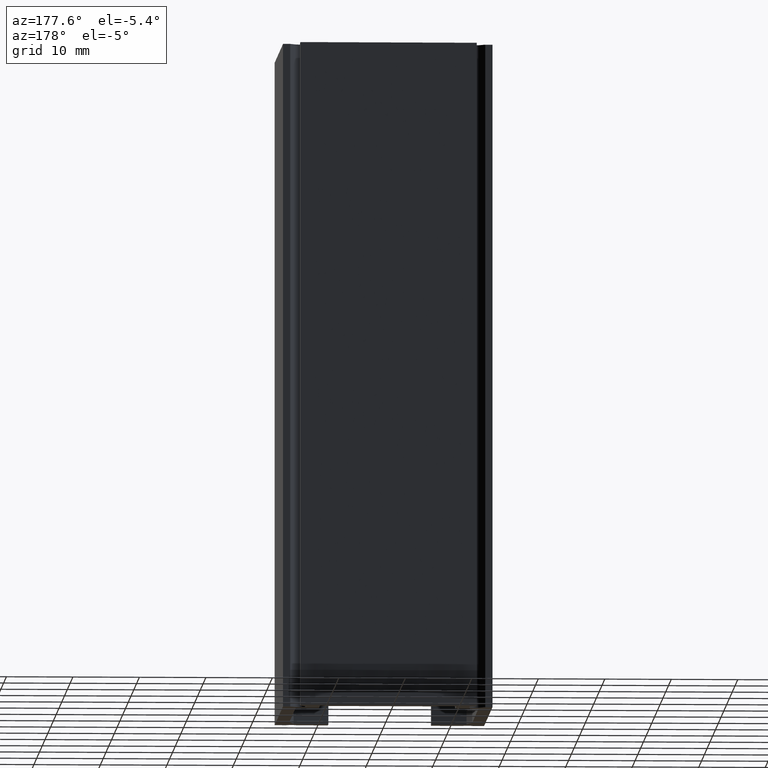
[diagram: clean part render]
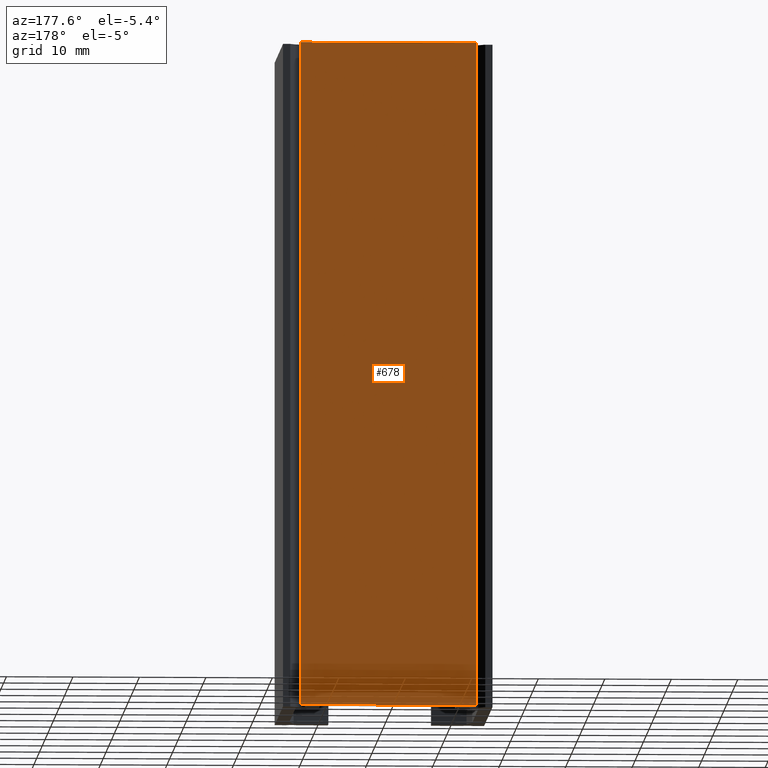
[diagram: same view with one face highlighted and labeled with its STEP entity id]
A machine part, auxiliary view. The second image highlights one B-rep face of the part: STEP entity #678.
In plain terms, the highlighted planar face has unit normal (-0, 1, 0).
Its self-contained STEP definition (entity closure, byte-faithful):
#37=PLANE('',#742);
#70=FACE_OUTER_BOUND('',#104,.T.);
#104=EDGE_LOOP('',(#585,#586,#587,#588));
#143=LINE('',#1000,#231);
#187=LINE('',#1091,#275);
#188=LINE('',#1094,#276);
#189=LINE('',#1095,#277);
#231=VECTOR('',#804,10.);
#275=VECTOR('',#892,10.);
#276=VECTOR('',#895,10.);
#277=VECTOR('',#896,10.);
#328=VERTEX_POINT('',#997);
#329=VERTEX_POINT('',#999);
#354=VERTEX_POINT('',#1089);
#355=VERTEX_POINT('',#1093);
#396=EDGE_CURVE('',#328,#329,#143,.T.);
#442=EDGE_CURVE('',#328,#354,#187,.T.);
#443=EDGE_CURVE('',#354,#355,#188,.T.);
#444=EDGE_CURVE('',#329,#355,#189,.T.);
#585=ORIENTED_EDGE('',*,*,#443,.T.);
#586=ORIENTED_EDGE('',*,*,#444,.F.);
#587=ORIENTED_EDGE('',*,*,#396,.F.);
#588=ORIENTED_EDGE('',*,*,#442,.T.);
#678=ADVANCED_FACE('',(#70),#37,.T.);
#742=AXIS2_PLACEMENT_3D('',#1092,#893,#894);
#804=DIRECTION('',(1.,1.83697019872103E-16,0.));
#892=DIRECTION('',(0.,0.,1.));
#893=DIRECTION('center_axis',(-1.83697019872103E-16,1.,0.));
#894=DIRECTION('ref_axis',(-1.,-1.83697019872103E-16,0.));
#895=DIRECTION('',(1.,1.83697019872103E-16,0.));
#896=DIRECTION('',(0.,0.,1.));
#997=CARTESIAN_POINT('',(-13.25,0.,0.));
#999=CARTESIAN_POINT('',(13.25,4.86797102661073E-15,0.));
#1000=CARTESIAN_POINT('',(6.62504257484006,3.33066907387547E-15,0.));
#1089=CARTESIAN_POINT('',(-13.25,0.,100.));
#1091=CARTESIAN_POINT('',(-13.25,0.,0.));
#1092=CARTESIAN_POINT('Origin',(13.25,4.86797102661073E-15,0.));
#1093=CARTESIAN_POINT('',(13.25,4.86797102661073E-15,100.));
#1094=CARTESIAN_POINT('',(6.62504257484006,3.33066907387547E-15,100.));
#1095=CARTESIAN_POINT('',(13.25,4.86797102661073E-15,0.));